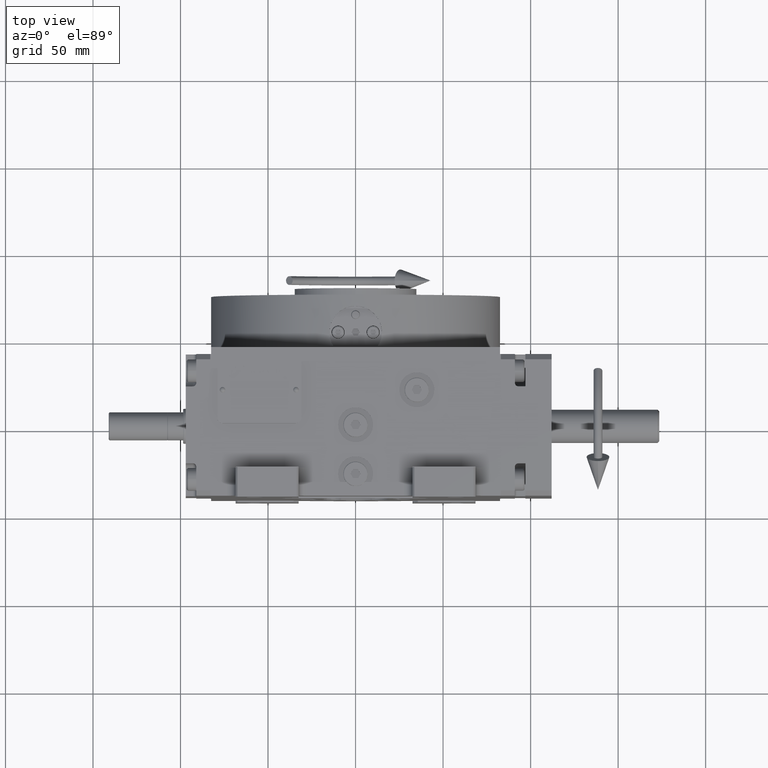
[diagram: clean part render]
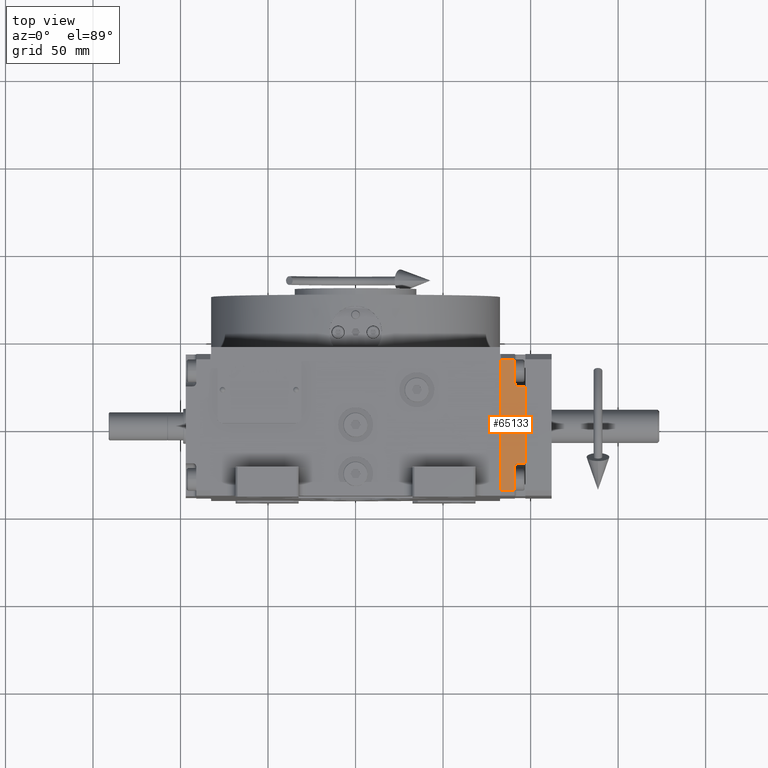
[diagram: same view with one face highlighted and labeled with its STEP entity id]
A machine part, top view. The second image highlights one B-rep face of the part: STEP entity #65133.
In plain terms, the highlighted planar face has unit normal (0, -0, 1).
Its self-contained STEP definition (entity closure, byte-faithful):
#347 = CARTESIAN_POINT ( 'NONE',  ( 24.00000000000039435, -8.000000000000534683, 49.00000000000052580 ) ) ;
#1076 = LINE ( 'NONE', #39969, #44972 ) ;
#1405 = CARTESIAN_POINT ( 'NONE',  ( -37.49999999999947420, 1.054711873393898713E-12, 49.00000000000000000 ) ) ;
#3301 = CARTESIAN_POINT ( 'NONE',  ( 24.00000000000039435, -8.000000000000534683, 49.00000000000052580 ) ) ;
#3475 = DIRECTION ( 'NONE',  ( -2.255140518769849223E-14, 1.000000000000000000, -3.469446951953614189E-15 ) ) ;
#3597 = CARTESIAN_POINT ( 'NONE',  ( -21.99999999999933920, -13.99999999999947065, 49.00000000000000000 ) ) ;
#6210 = DIRECTION ( 'NONE',  ( 2.320366121466574330E-14, -1.000000000000000000, 2.109423746787929955E-15 ) ) ;
#6307 = DIRECTION ( 'NONE',  ( -2.320366121466574330E-14, 1.000000000000000000, -2.109423746787929955E-15 ) ) ;
#6759 = EDGE_CURVE ( 'NONE', #66469, #12679, #25875, .T. ) ;
#6814 = VECTOR ( 'NONE', #58033, 1000.000000000000000 ) ;
#6898 = CARTESIAN_POINT ( 'NONE',  ( 37.50000000000078870, -8.000000000001062261, 49.00000000000052580 ) ) ;
#7374 = EDGE_CURVE ( 'NONE', #53652, #45566, #55829, .T. ) ;
#8243 = EDGE_CURVE ( 'NONE', #66469, #53652, #53864, .T. ) ;
#9026 = CARTESIAN_POINT ( 'NONE',  ( -21.99999999999933920, -13.99999999999947065, 49.00000000000000000 ) ) ;
#9358 = CARTESIAN_POINT ( 'NONE',  ( -23.99999999999947420, -9.999999999999481304, 49.00000000000000000 ) ) ;
#9387 = ORIENTED_EDGE ( 'NONE', *, *, #13554, .T. ) ;
#9988 = CARTESIAN_POINT ( 'NONE',  ( -37.49999999999947420, 1.054711873393898713E-12, 49.00000000000000000 ) ) ;
#10683 = ORIENTED_EDGE ( 'NONE', *, *, #52957, .T. ) ;
#11880 = CARTESIAN_POINT ( 'NONE',  ( -40.49999999999947420, 1.054711873393898713E-12, 48.99999999999947420 ) ) ;
#12679 = VERTEX_POINT ( 'NONE', #17280 ) ;
#12848 = CARTESIAN_POINT ( 'NONE',  ( -37.49999999999920419, -7.999999999998951949, 49.00000000000000000 ) ) ;
#13418 = ORIENTED_EDGE ( 'NONE', *, *, #62181, .T. ) ;
#13554 = EDGE_CURVE ( 'NONE', #64422, #40162, #22345, .T. ) ;
#15451 = ORIENTED_EDGE ( 'NONE', *, *, #47551, .T. ) ;
#16558 = DIRECTION ( 'NONE',  ( 1.000000000000000000, -2.320366121466573383E-14, 8.437694987151221262E-15 ) ) ;
#17280 = CARTESIAN_POINT ( 'NONE',  ( -21.99999999999947065, -9.999999999999481304, 49.00000000000000000 ) ) ;
#17606 = DIRECTION ( 'NONE',  ( 1.000000000000000000, -2.320366121466573383E-14, 8.437694987151221262E-15 ) ) ;
#17836 = CARTESIAN_POINT ( 'NONE',  ( -37.49999999999920419, -7.999999999998951949, 49.00000000000000000 ) ) ;
#18378 = VECTOR ( 'NONE', #49689, 1000.000000000000000 ) ;
#18680 = ORIENTED_EDGE ( 'NONE', *, *, #53883, .F. ) ;
#20247 = CARTESIAN_POINT ( 'NONE',  ( 24.00000000000052935, -10.00000000000053646, 49.00000000000052580 ) ) ;
#20974 = LINE ( 'NONE', #9988, #58366 ) ;
#21634 = CIRCLE ( 'NONE', #34513, 2.000000000000001776 ) ;
#22345 = LINE ( 'NONE', #347, #24860 ) ;
#24860 = VECTOR ( 'NONE', #17606, 1000.000000000000000 ) ;
#25875 = LINE ( 'NONE', #9026, #18378 ) ;
#26665 = CARTESIAN_POINT ( 'NONE',  ( -21.99999999999933920, -13.99999999999947065, 49.00000000000000000 ) ) ;
#29797 = LINE ( 'NONE', #52169, #6814 ) ;
#30347 = CARTESIAN_POINT ( 'NONE',  ( 22.00000000000052580, -10.00000000000053646, 49.00000000000000000 ) ) ;
#31353 = DIRECTION ( 'NONE',  ( -8.437694987151243350E-15, 2.109423746787931139E-15, -1.000000000000000000 ) ) ;
#31625 = ORIENTED_EDGE ( 'NONE', *, *, #8243, .T. ) ;
#31847 = DIRECTION ( 'NONE',  ( 1.000000000000000000, -2.320366121466573383E-14, 8.437694987151221262E-15 ) ) ;
#32456 = CIRCLE ( 'NONE', #69900, 2.000000000000000000 ) ;
#34513 = AXIS2_PLACEMENT_3D ( 'NONE', #20247, #64272, #47787 ) ;
#34948 = CARTESIAN_POINT ( 'NONE',  ( 22.00000000000065725, -14.00000000000052580, 49.00000000000000000 ) ) ;
#35215 = DIRECTION ( 'NONE',  ( 1.000000000000000000, -2.320366121466573383E-14, 8.437694987151221262E-15 ) ) ;
#36542 = VERTEX_POINT ( 'NONE', #69752 ) ;
#38070 = ORIENTED_EDGE ( 'NONE', *, *, #6759, .F. ) ;
#39004 = ORIENTED_EDGE ( 'NONE', *, *, #71798, .T. ) ;
#39969 = CARTESIAN_POINT ( 'NONE',  ( -37.49999999999947420, 1.054711873393898713E-12, 49.00000000000000000 ) ) ;
#40162 = VERTEX_POINT ( 'NONE', #6898 ) ;
#40690 = EDGE_CURVE ( 'NONE', #54012, #40162, #29797, .T. ) ;
#41098 = LINE ( 'NONE', #12848, #52165 ) ;
#41819 = EDGE_LOOP ( 'NONE', ( #67416, #18680, #39004, #10683, #15451, #38070, #31625, #70267, #13418, #9387 ) ) ;
#43545 = PLANE ( 'NONE',  #58116 ) ;
#44972 = VECTOR ( 'NONE', #6210, 1000.000000000000000 ) ;
#45566 = VERTEX_POINT ( 'NONE', #30347 ) ;
#47084 = VECTOR ( 'NONE', #6307, 1000.000000000000000 ) ;
#47551 = EDGE_CURVE ( 'NONE', #36542, #12679, #32456, .T. ) ;
#47787 = DIRECTION ( 'NONE',  ( -1.000000000000000000, 2.168404344971006975E-14, -6.938893903907222067E-15 ) ) ;
#48679 = FACE_OUTER_BOUND ( 'NONE', #41819, .T. ) ;
#49689 = DIRECTION ( 'NONE',  ( -2.320366121466574330E-14, 1.000000000000000000, -2.109423746787929955E-15 ) ) ;
#51381 = CARTESIAN_POINT ( 'NONE',  ( 37.50000000000052580, -1.054711873393898713E-12, 49.00000000000052580 ) ) ;
#52165 = VECTOR ( 'NONE', #35215, 1000.000000000000000 ) ;
#52169 = CARTESIAN_POINT ( 'NONE',  ( 37.50000000000052580, -1.054711873393898713E-12, 49.00000000000052580 ) ) ;
#52957 = EDGE_CURVE ( 'NONE', #62948, #36542, #41098, .T. ) ;
#53652 = VERTEX_POINT ( 'NONE', #34948 ) ;
#53864 = LINE ( 'NONE', #3597, #55351 ) ;
#53883 = EDGE_CURVE ( 'NONE', #66176, #54012, #20974, .T. ) ;
#54012 = VERTEX_POINT ( 'NONE', #51381 ) ;
#55351 = VECTOR ( 'NONE', #31847, 1000.000000000000000 ) ;
#55829 = LINE ( 'NONE', #71957, #47084 ) ;
#56618 = DIRECTION ( 'NONE',  ( 1.000000000000000000, -2.320366121466573383E-14, 8.437694987151221262E-15 ) ) ;
#58033 = DIRECTION ( 'NONE',  ( 2.320366121466574330E-14, -1.000000000000000000, 2.109423746787929955E-15 ) ) ;
#58116 = AXIS2_PLACEMENT_3D ( 'NONE', #11880, #60406, #56618 ) ;
#58366 = VECTOR ( 'NONE', #16558, 1000.000000000000000 ) ;
#60406 = DIRECTION ( 'NONE',  ( -8.437694987151270171E-15, -2.109423746787539864E-15, 1.000000000000000000 ) ) ;
#62181 = EDGE_CURVE ( 'NONE', #45566, #64422, #21634, .T. ) ;
#62948 = VERTEX_POINT ( 'NONE', #17836 ) ;
#64272 = DIRECTION ( 'NONE',  ( -8.437694987151243350E-15, 2.109423746787931139E-15, -1.000000000000000000 ) ) ;
#64422 = VERTEX_POINT ( 'NONE', #3301 ) ;
#65133 = ADVANCED_FACE ( 'NONE', ( #48679 ), #43545, .T. ) ;
#66176 = VERTEX_POINT ( 'NONE', #1405 ) ;
#66469 = VERTEX_POINT ( 'NONE', #26665 ) ;
#67416 = ORIENTED_EDGE ( 'NONE', *, *, #40690, .F. ) ;
#69752 = CARTESIAN_POINT ( 'NONE',  ( -23.99999999999960565, -7.999999999999479527, 49.00000000000000000 ) ) ;
#69900 = AXIS2_PLACEMENT_3D ( 'NONE', #9358, #31353, #3475 ) ;
#70267 = ORIENTED_EDGE ( 'NONE', *, *, #7374, .T. ) ;
#71798 = EDGE_CURVE ( 'NONE', #66176, #62948, #1076, .T. ) ;
#71957 = CARTESIAN_POINT ( 'NONE',  ( 22.00000000000065725, -14.00000000000052580, 49.00000000000000000 ) ) ;